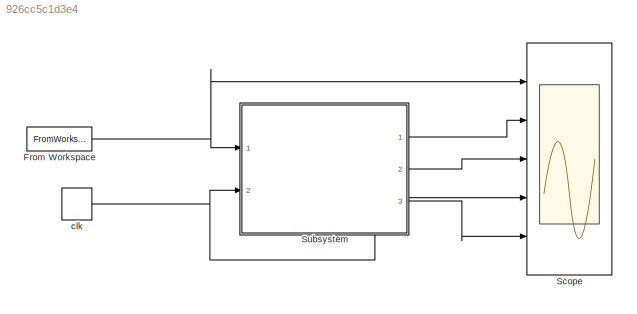
MODEL slx_926cc5c1d3e4
KIND model
BLOCK [FromWorkspace] From Workspace
  SampleTime = 0
  VariableName = array
  ZeroCross = on
BLOCK [Scope] Scope
  DataFormat = StructureWithTime
  Floating = off
  MaxDataPoints = 5000000
  NumInputPorts = 5
  Ports = [5]
  SampleTime = 0
  ShowLegends = off
  YMax = 5~5~5~5~5
  YMin = -5~-5~-5~-5~-5
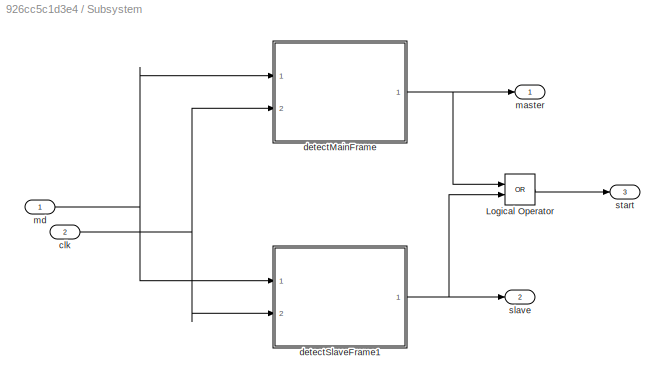
BLOCK [SubSystem] Subsystem
  FunctionWithSeparateData = off
  MaskHideContents = off
  MinAlgLoopOccurrences = off
  Opaque = off
  Ports = [2, 3]
  PropExecContextOutsideSubsystem = off
  RTWSystemCode = Auto
  RequestExecContextInheritance = off
BLOCK [Logic] Subsystem/Logical Operator
  AllPortsSameDT = off
  Operator = OR
  OutDataTypeStr = boolean
  Ports = [2, 1]
BLOCK [Inport] Subsystem/clk
  IconDisplay = Port number
  Port = 2
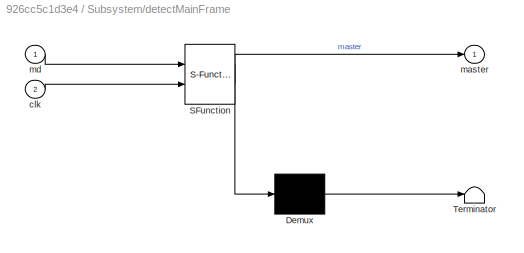
BLOCK [SubSystem] Subsystem/detectMainFrame
  ErrorFcn = Stateflow.Translate.translate
  FunctionWithSeparateData = off
  MaskHideContents = off
  MinAlgLoopOccurrences = off
  Opaque = off
  PermitHierarchicalResolution = ExplicitOnly
  Ports = [2, 1]
  PropExecContextOutsideSubsystem = off
  RTWSystemCode = Auto
  RequestExecContextInheritance = off
  SFBlockType = Chart
  TreatAsAtomicUnit = on
BLOCK [Demux] Subsystem/detectMainFrame/ Demux 
  Outputs = 1
  Ports = [1, 1]
BLOCK [S-Function] Subsystem/detectMainFrame/ SFunction 
  EnableBusSupport = on
  FunctionName = sf_sfun
  PortCounts = [2 2]
  Ports = [2, 2]
  Tag = Stateflow S-Function detectFrame 1
BLOCK [Terminator] Subsystem/detectMainFrame/ Terminator 
BLOCK [Inport] Subsystem/detectMainFrame/clk
  IconDisplay = Port number
  Port = 2
BLOCK [Outport] Subsystem/detectMainFrame/master
  IconDisplay = Port number
BLOCK [Inport] Subsystem/detectMainFrame/md
  IconDisplay = Port number
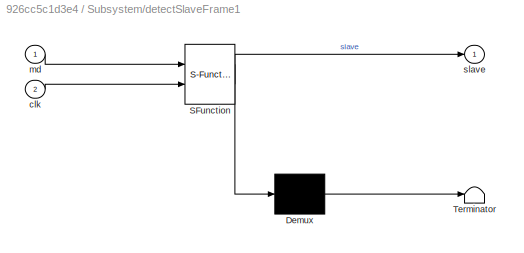
BLOCK [SubSystem] Subsystem/detectSlaveFrame1
  ErrorFcn = Stateflow.Translate.translate
  FunctionWithSeparateData = off
  MaskHideContents = off
  MinAlgLoopOccurrences = off
  Opaque = off
  PermitHierarchicalResolution = ExplicitOnly
  Ports = [2, 1]
  PropExecContextOutsideSubsystem = off
  RTWSystemCode = Auto
  RequestExecContextInheritance = off
  SFBlockType = Chart
  TreatAsAtomicUnit = on
BLOCK [Demux] Subsystem/detectSlaveFrame1/ Demux 
  Outputs = 1
  Ports = [1, 1]
BLOCK [S-Function] Subsystem/detectSlaveFrame1/ SFunction 
  EnableBusSupport = on
  FunctionName = sf_sfun
  PortCounts = [2 2]
  Ports = [2, 2]
  Tag = Stateflow S-Function detectFrame 2
BLOCK [Terminator] Subsystem/detectSlaveFrame1/ Terminator 
BLOCK [Inport] Subsystem/detectSlaveFrame1/clk
  IconDisplay = Port number
  Port = 2
BLOCK [Inport] Subsystem/detectSlaveFrame1/md
  IconDisplay = Port number
BLOCK [Outport] Subsystem/detectSlaveFrame1/slave
  IconDisplay = Port number
BLOCK [Outport] Subsystem/master
  IconDisplay = Port number
BLOCK [Inport] Subsystem/md 
  IconDisplay = Port number
BLOCK [Outport] Subsystem/slave
  IconDisplay = Port number
  Port = 2
BLOCK [Outport] Subsystem/start
  IconDisplay = Port number
  Port = 3
BLOCK [DiscretePulseGenerator] clk
  Amplitude = true
  Ports = [0, 1]
  PulseType = Time based
  PulseWidth = 50
NET From Workspace:1 -> Scope:1, Subsystem:1
LINE Subsystem/Logical Operator:1 -> Subsystem/start:1
NET Subsystem/clk:1 -> Subsystem/detectMainFrame:2, Subsystem/detectSlaveFrame1:2
NET Subsystem/detectMainFrame:1 -> Subsystem/Logical Operator:1, Subsystem/master:1
NET Subsystem/detectSlaveFrame1:1 -> Subsystem/Logical Operator:2, Subsystem/slave:1
NET Subsystem/md :1 -> Subsystem/detectMainFrame:1, Subsystem/detectSlaveFrame1:1
LINE Subsystem:1 -> Scope:2
LINE Subsystem:2 -> Scope:3
LINE Subsystem:3 -> Scope:5
NET clk:1 -> Scope:4, Subsystem:2
note: NET lines group one-source signal fan-out (src -> all destinations, sorted); 1:1 wires keep LINE
